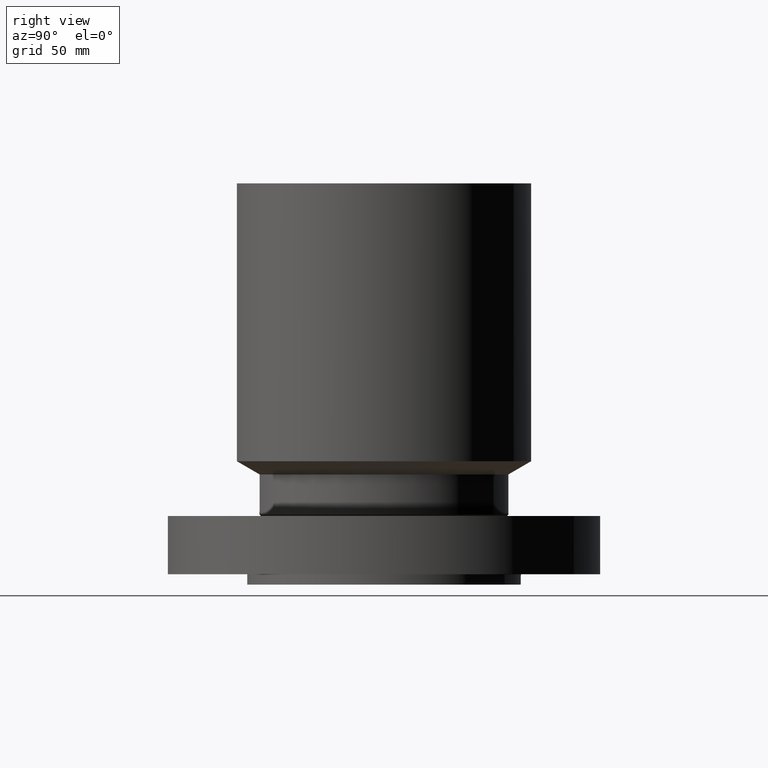
[diagram: clean part render]
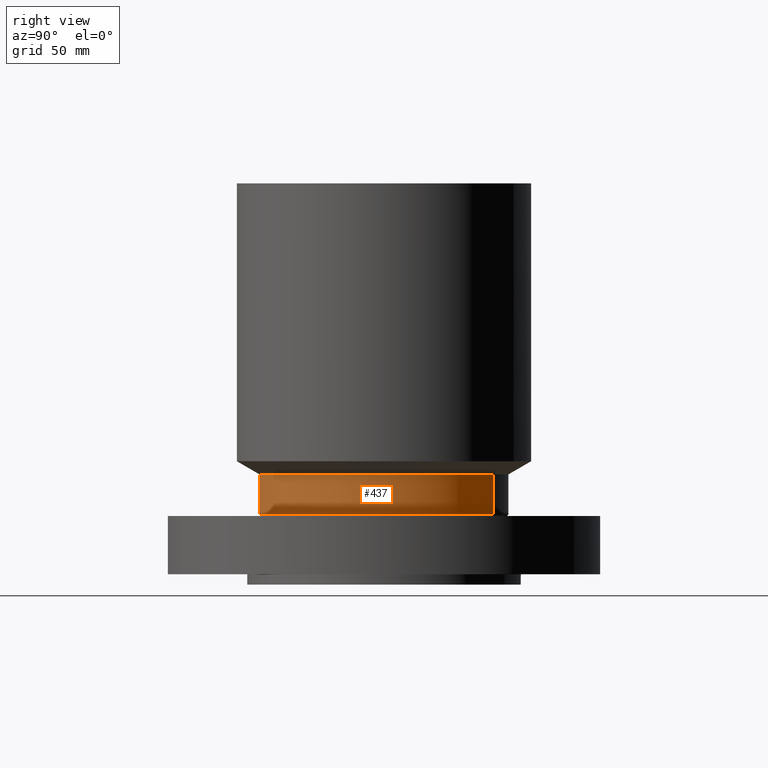
[diagram: same view with one face highlighted and labeled with its STEP entity id]
A machine part, right view. The second image highlights one B-rep face of the part: STEP entity #437.
In plain terms, the highlighted cylindrical surface (partial cylindrical patch) has radius 95.25 mm, axis along (0, 0, -1).
Its self-contained STEP definition (entity closure, byte-faithful):
#378=AXIS2_PLACEMENT_3D('Circle Axis2P3D',#376,#377,$) ;
#410=AXIS2_PLACEMENT_3D('Cylinder Axis2P3D',#407,#408,#409) ;
#421=AXIS2_PLACEMENT_3D('Circle Axis2P3D',#419,#420,$) ;
#373=CARTESIAN_POINT('Vertex',(1.79784576977,3.2909346071,1.79098076212)) ;
#376=CARTESIAN_POINT('Axis2P3D Location',(0.,0.,1.79098076212)) ;
#380=CARTESIAN_POINT('Vertex',(-1.79784576977,-3.2909346071,1.79098076212)) ;
#407=CARTESIAN_POINT('Axis2P3D Location',(0.,0.,5.71850000002)) ;
#412=CARTESIAN_POINT('Line Origine',(1.79784576977,3.2909346071,2.39549038107)) ;
#416=CARTESIAN_POINT('Vertex',(1.79784576977,3.2909346071,3.00000000001)) ;
#419=CARTESIAN_POINT('Axis2P3D Location',(0.,0.,3.00000000001)) ;
#423=CARTESIAN_POINT('Vertex',(-1.79784576977,-3.2909346071,3.00000000001)) ;
#426=CARTESIAN_POINT('Line Origine',(-1.79784576977,-3.2909346071,2.39549038107)) ;
#377=DIRECTION('Axis2P3D Direction',(-0.,0.,0.0393700787402)) ;
#408=DIRECTION('Axis2P3D Direction',(0.,0.,-0.0393700787402)) ;
#409=DIRECTION('Axis2P3D XDirection',(-0.0188750212049,-0.0345504945626,0.)) ;
#413=DIRECTION('Vector Direction',(0.,0.,-0.0393700787402)) ;
#420=DIRECTION('Axis2P3D Direction',(0.,0.,-0.0393700787402)) ;
#427=DIRECTION('Vector Direction',(0.,0.,-0.0393700787402)) ;
#414=VECTOR('Line Direction',#413,0.0393700787402) ;
#428=VECTOR('Line Direction',#427,0.0393700787402) ;
#432=ORIENTED_EDGE('',*,*,#382,.F.) ;
#433=ORIENTED_EDGE('',*,*,#418,.T.) ;
#434=ORIENTED_EDGE('',*,*,#425,.T.) ;
#435=ORIENTED_EDGE('',*,*,#430,.F.) ;
#437=ADVANCED_FACE('PartBody',(#436),#411,.T.) ;
#379=CIRCLE('generated circle',#378,3.75000000002) ;
#422=CIRCLE('generated circle',#421,3.75000000002) ;
#411=CYLINDRICAL_SURFACE('generated cylinder',#410,3.75000000002) ;
#382=EDGE_CURVE('',#374,#381,#379,.F.) ;
#418=EDGE_CURVE('',#374,#417,#415,.F.) ;
#425=EDGE_CURVE('',#417,#424,#422,.T.) ;
#430=EDGE_CURVE('',#381,#424,#429,.F.) ;
#431=EDGE_LOOP('',(#432,#433,#434,#435)) ;
#436=FACE_OUTER_BOUND('',#431,.T.) ;
#415=LINE('Line',#412,#414) ;
#429=LINE('Line',#426,#428) ;
#374=VERTEX_POINT('',#373) ;
#381=VERTEX_POINT('',#380) ;
#417=VERTEX_POINT('',#416) ;
#424=VERTEX_POINT('',#423) ;